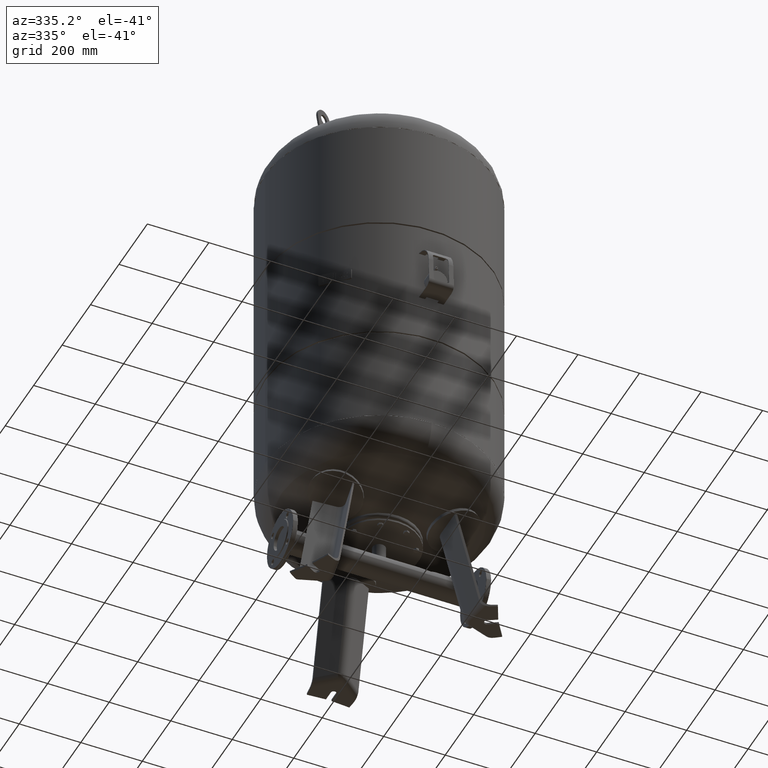
[diagram: clean part render]
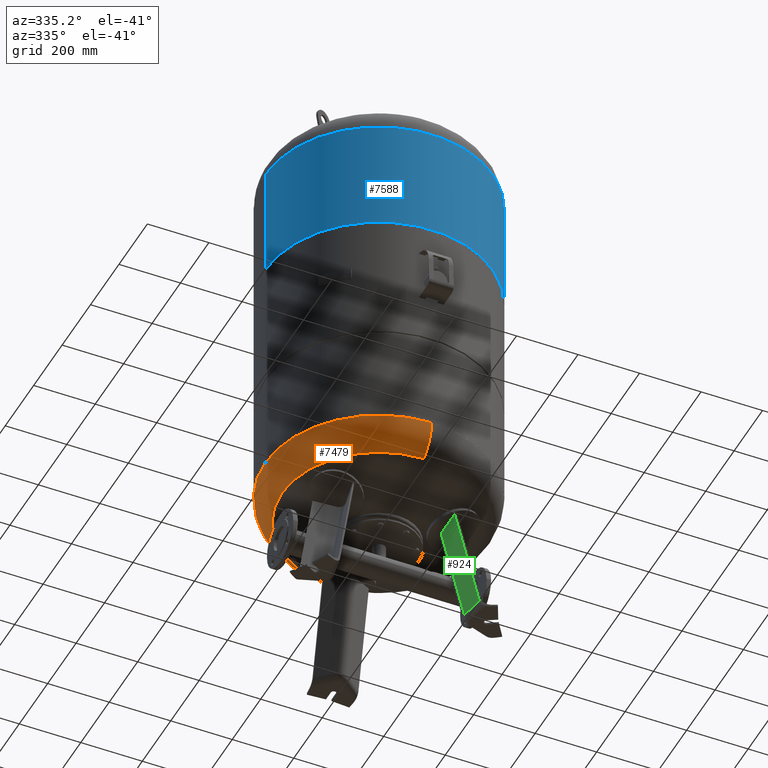
[diagram: same view with three faces highlighted in distinct colors, each labeled with its STEP entity id]
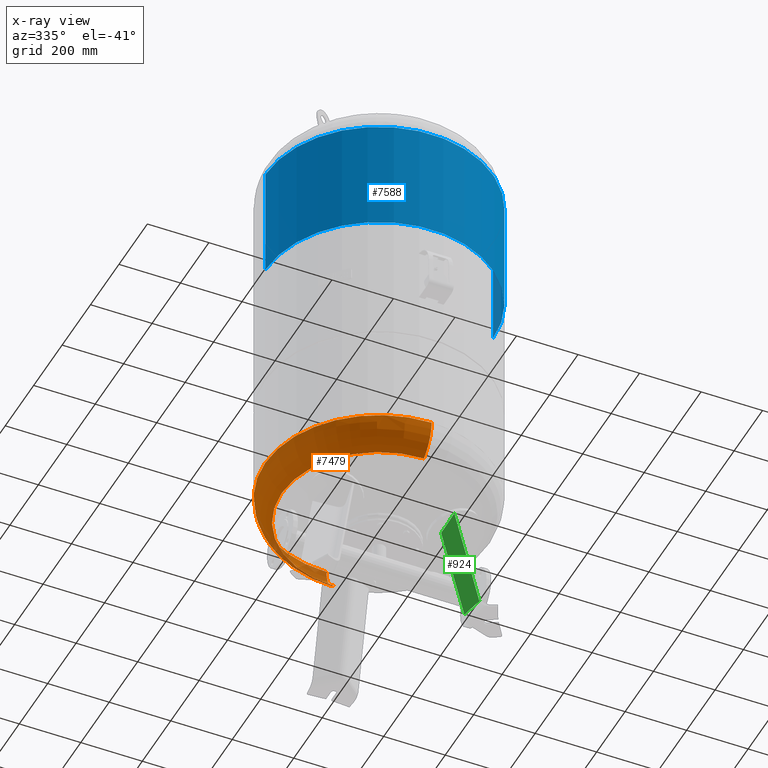
[diagram: x-ray of the same camera — body ghosted, the three highlighted faces saturated]
A machine part, auxiliary view with three faces highlighted in distinct colors.
The next image is the same camera in x-ray (body ghosted, the three faces saturated) — at least one of them is partly hidden behind the body in this view.
Their STEP definitions:

[orange] entity #7479 — the highlighted toroidal blend (fillet) surface has major radius 254.5 mm and minor (blend) radius 115.5 mm.
#7384=CARTESIAN_POINT('',(-370.0,-3.468087E-014,513.793879611869560));
#7385=VERTEX_POINT('',#7384);
#7409=CARTESIAN_POINT('',(-4.531044E-014,369.999999999999940,513.793879611869780));
#7410=VERTEX_POINT('',#7409);
#7418=CARTESIAN_POINT('',(0.0,-3.468087E-014,513.793879611869560));
#7419=DIRECTION('',(0.0,0.0,1.0));
#7420=DIRECTION('',(-1.0,0.0,0.0));
#7421=AXIS2_PLACEMENT_3D('',#7418,#7419,#7420);
#7422=CIRCLE('',#7421,370.0);
#7423=EDGE_CURVE('',#7410,#7385,#7422,.T.);
#7428=CARTESIAN_POINT('',(0.0,-3.468087E-014,513.793879611869560));
#7429=DIRECTION('',(0.0,-1.836970E-016,1.0));
#7430=DIRECTION('',(0.0,-1.0,0.0));
#7431=AXIS2_PLACEMENT_3D('',#7428,#7429,#7430);
#7432=TOROIDAL_SURFACE('',#7431,254.500000000000030,115.500000000000000);
#7433=CARTESIAN_POINT('',(0.0,-370.000000000000060,513.793879611869330));
#7434=VERTEX_POINT('',#7433);
#7435=CARTESIAN_POINT('',(0.0,-315.931034482758610,415.985505725079460));
#7436=VERTEX_POINT('',#7435);
#7437=CARTESIAN_POINT('',(0.0,-254.500000000000060,513.793879611869440));
#7438=DIRECTION('',(1.0,0.0,0.0));
#7439=DIRECTION('',(0.0,-1.0,0.0));
#7440=AXIS2_PLACEMENT_3D('',#7437,#7438,#7439);
#7441=CIRCLE('',#7440,115.500000000000000);
#7442=EDGE_CURVE('',#7434,#7436,#7441,.T.);
#7443=ORIENTED_EDGE('',*,*,#7442,.F.);
#7444=CARTESIAN_POINT('',(0.0,-3.468087E-014,513.793879611869560));
#7445=DIRECTION('',(0.0,0.0,1.0));
#7446=DIRECTION('',(-1.0,0.0,0.0));
#7447=AXIS2_PLACEMENT_3D('',#7444,#7445,#7446);
#7448=CIRCLE('',#7447,370.0);
#7449=EDGE_CURVE('',#7385,#7434,#7448,.T.);
#7450=ORIENTED_EDGE('',*,*,#7449,.F.);
#7451=ORIENTED_EDGE('',*,*,#7423,.F.);
#7452=CARTESIAN_POINT('',(-3.868912E-014,315.931034482758610,415.985505725079580));
#7453=VERTEX_POINT('',#7452);
#7454=CARTESIAN_POINT('',(-3.116623E-014,254.500000000000000,513.793879611869670));
#7455=DIRECTION('',(-1.0,0.0,0.0));
#7456=DIRECTION('',(0.0,1.0,0.0));
#7457=AXIS2_PLACEMENT_3D('',#7454,#7455,#7456);
#7458=CIRCLE('',#7457,115.500000000000000);
#7459=EDGE_CURVE('',#7410,#7453,#7458,.T.);
#7460=ORIENTED_EDGE('',*,*,#7459,.T.);
#7461=CARTESIAN_POINT('',(-315.931034482758610,-1.671377E-014,415.985505725079520));
#7462=VERTEX_POINT('',#7461);
#7463=CARTESIAN_POINT('',(0.0,-1.671377E-014,415.985505725079520));
#7464=DIRECTION('',(0.0,0.0,1.0));
#7465=DIRECTION('',(-1.0,0.0,0.0));
#7466=AXIS2_PLACEMENT_3D('',#7463,#7464,#7465);
#7467=CIRCLE('',#7466,315.931034482758610);
#7468=EDGE_CURVE('',#7453,#7462,#7467,.T.);
#7469=ORIENTED_EDGE('',*,*,#7468,.T.);
#7470=CARTESIAN_POINT('',(0.0,-1.671377E-014,415.985505725079520));
#7471=DIRECTION('',(0.0,0.0,1.0));
#7472=DIRECTION('',(-1.0,0.0,0.0));
#7473=AXIS2_PLACEMENT_3D('',#7470,#7471,#7472);
#7474=CIRCLE('',#7473,315.931034482758610);
#7475=EDGE_CURVE('',#7462,#7436,#7474,.T.);
#7476=ORIENTED_EDGE('',*,*,#7475,.T.);
#7477=EDGE_LOOP('',(#7443,#7450,#7451,#7460,#7469,#7476));
#7478=FACE_OUTER_BOUND('',#7477,.T.);
#7479=ADVANCED_FACE('',(#7478),#7432,.T.);

[blue] entity #7588 — the highlighted cylindrical surface (partial cylindrical patch) has radius 370 mm, axis along (0, 0, 1).
#7547=CARTESIAN_POINT('',(1.117467E-014,0.0,1454.833333333333500));
#7548=DIRECTION('',(2.961484E-017,0.0,1.0));
#7549=DIRECTION('',(1.0,0.0,0.0));
#7550=AXIS2_PLACEMENT_3D('',#7547,#7548,#7549);
#7551=CYLINDRICAL_SURFACE('',#7550,369.999999999999890);
#7552=CARTESIAN_POINT('',(370.0,0.0,1641.0));
#7553=VERTEX_POINT('',#7552);
#7554=CARTESIAN_POINT('',(369.999999999999720,0.0,1268.666666666666500));
#7555=VERTEX_POINT('',#7554);
#7556=CARTESIAN_POINT('',(370.0,0.0,1641.0));
#7557=DIRECTION('',(0.0,0.0,-1.0));
#7558=VECTOR('',#7557,372.333333333333480);
#7559=LINE('',#7556,#7558);
#7560=EDGE_CURVE('',#7553,#7555,#7559,.T.);
#7561=ORIENTED_EDGE('',*,*,#7560,.F.);
#7562=CARTESIAN_POINT('',(-369.999999999999890,-4.531044E-014,1641.0));
#7563=VERTEX_POINT('',#7562);
#7564=CARTESIAN_POINT('',(1.668796E-014,0.0,1641.0));
#7565=DIRECTION('',(0.0,0.0,1.0));
#7566=DIRECTION('',(1.0,0.0,0.0));
#7567=AXIS2_PLACEMENT_3D('',#7564,#7565,#7566);
#7568=CIRCLE('',#7567,370.0);
#7569=EDGE_CURVE('',#7563,#7553,#7568,.T.);
#7570=ORIENTED_EDGE('',*,*,#7569,.F.);
#7571=CARTESIAN_POINT('',(-369.999999999999720,-4.531044E-014,1268.666666666666500));
#7572=VERTEX_POINT('',#7571);
#7573=CARTESIAN_POINT('',(-369.999999999999890,-4.531044E-014,1641.0));
#7574=DIRECTION('',(0.0,0.0,-1.0));
#7575=VECTOR('',#7574,372.333333333333480);
#7576=LINE('',#7573,#7575);
#7577=EDGE_CURVE('',#7563,#7572,#7576,.T.);
#7578=ORIENTED_EDGE('',*,*,#7577,.T.);
#7579=CARTESIAN_POINT('',(5.661371E-015,0.0,1268.666666666666500));
#7580=DIRECTION('',(0.0,0.0,1.0));
#7581=DIRECTION('',(1.0,0.0,0.0));
#7582=AXIS2_PLACEMENT_3D('',#7579,#7580,#7581);
#7583=CIRCLE('',#7582,369.999999999999720);
#7584=EDGE_CURVE('',#7572,#7555,#7583,.T.);
#7585=ORIENTED_EDGE('',*,*,#7584,.T.);
#7586=EDGE_LOOP('',(#7561,#7570,#7578,#7585));
#7587=FACE_OUTER_BOUND('',#7586,.T.);
#7588=ADVANCED_FACE('',(#7587),#7551,.T.);

[green] entity #924 — the highlighted planar face has unit normal (-0.9697, -0.1854, -0.1588).
#296=CARTESIAN_POINT('',(152.493107836385010,-106.674705315852380,345.982061508122970));
#297=VERTEX_POINT('',#296);
#313=CARTESIAN_POINT('',(162.367665870317950,-178.613505168794290,369.683830982884900));
#314=VERTEX_POINT('',#313);
#315=CARTESIAN_POINT('',(162.367665870317950,-178.613505168794290,369.683830982884900));
#316=CARTESIAN_POINT('',(160.649463305811080,-165.333219986767010,364.669037481009180));
#317=CARTESIAN_POINT('',(158.872911095725750,-152.034252945903460,359.988747504562130));
#318=CARTESIAN_POINT('',(156.048713479697970,-131.566367909792430,353.334982197884130));
#319=CARTESIAN_POINT('',(155.038434818138340,-124.369933104338970,351.101192125903880));
#320=CARTESIAN_POINT('',(153.509677728166280,-113.682305909172340,347.956934926011460));
#321=CARTESIAN_POINT('',(153.003537404700890,-110.175965198482290,346.953435462919910));
#322=CARTESIAN_POINT('',(152.493107836385010,-106.674705315852380,345.982061508122970));
#323=B_SPLINE_CURVE_WITH_KNOTS('',3,(#315,#316,#317,#318,#319,#320,#321,#322),.UNSPECIFIED.,.F.,.U.,(4,2,2,4),(536.762478861198470,540.755951889067660,542.927906845961390,543.990518214376830),.UNSPECIFIED.);
#324=EDGE_CURVE('',#314,#297,#323,.T.);
#405=CARTESIAN_POINT('',(226.547657155192920,-215.667840413704790,21.029948423057292));
#406=VERTEX_POINT('',#405);
#414=CARTESIAN_POINT('',(212.310092040547830,-141.210057248237430,21.029948423057292));
#415=VERTEX_POINT('',#414);
#416=CARTESIAN_POINT('',(226.547657155192920,-215.667840413704790,21.029948423057292));
#417=DIRECTION('',(-0.187813845079448,0.982204642422582,0.0));
#418=VECTOR('',#417,75.806792138366561);
#419=LINE('',#416,#418);
#420=EDGE_CURVE('',#406,#415,#419,.T.);
#895=CARTESIAN_POINT('',(212.310092040547830,-141.210057248237430,21.029948423057292));
#896=DIRECTION('',(-0.180056805991956,0.103955845408880,0.978147600733805));
#897=VECTOR('',#896,332.211736594034330);
#898=LINE('',#895,#897);
#899=EDGE_CURVE('',#415,#297,#898,.T.);
#908=CARTESIAN_POINT('',(242.887508103022530,-225.101657756952590,-67.735293817669458));
#909=DIRECTION('',(-0.969740897595359,-0.185430570007243,-0.158802063077709));
#910=DIRECTION('',(0.180056805991956,-0.103955845408880,-0.978147600733806));
#911=AXIS2_PLACEMENT_3D('',#908,#909,#910);
#912=PLANE('',#911);
#913=CARTESIAN_POINT('',(226.547657155192920,-215.667840413704790,21.029948423057292));
#914=DIRECTION('',(-0.180056805991956,0.103955845408880,0.978147600733806));
#915=VECTOR('',#914,356.443017698216240);
#916=LINE('',#913,#915);
#917=EDGE_CURVE('',#406,#314,#916,.T.);
#918=ORIENTED_EDGE('',*,*,#917,.T.);
#919=ORIENTED_EDGE('',*,*,#324,.T.);
#920=ORIENTED_EDGE('',*,*,#899,.F.);
#921=ORIENTED_EDGE('',*,*,#420,.F.);
#922=EDGE_LOOP('',(#918,#919,#920,#921));
#923=FACE_OUTER_BOUND('',#922,.T.);
#924=ADVANCED_FACE('',(#923),#912,.T.);